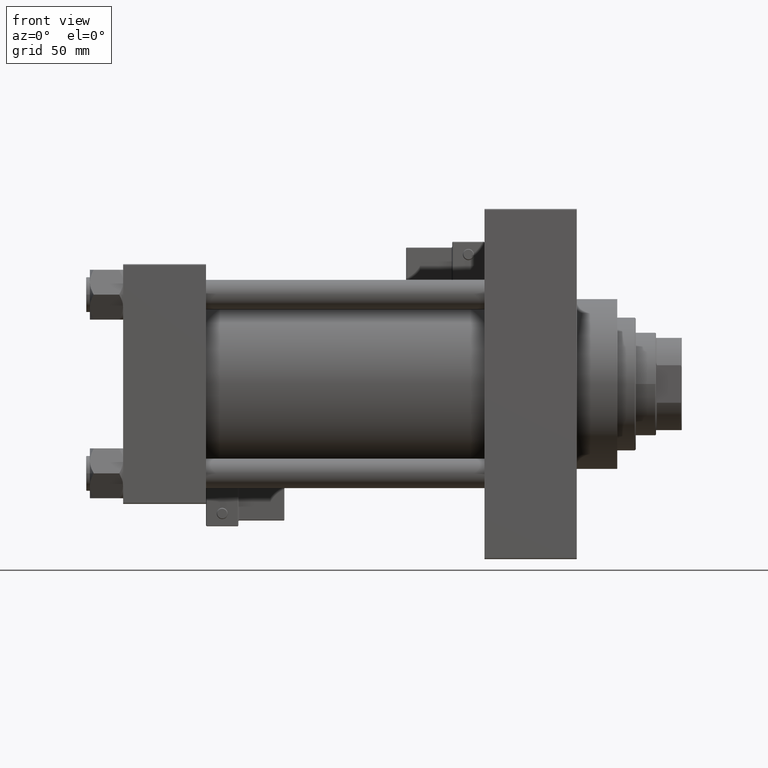
[diagram: clean part render]
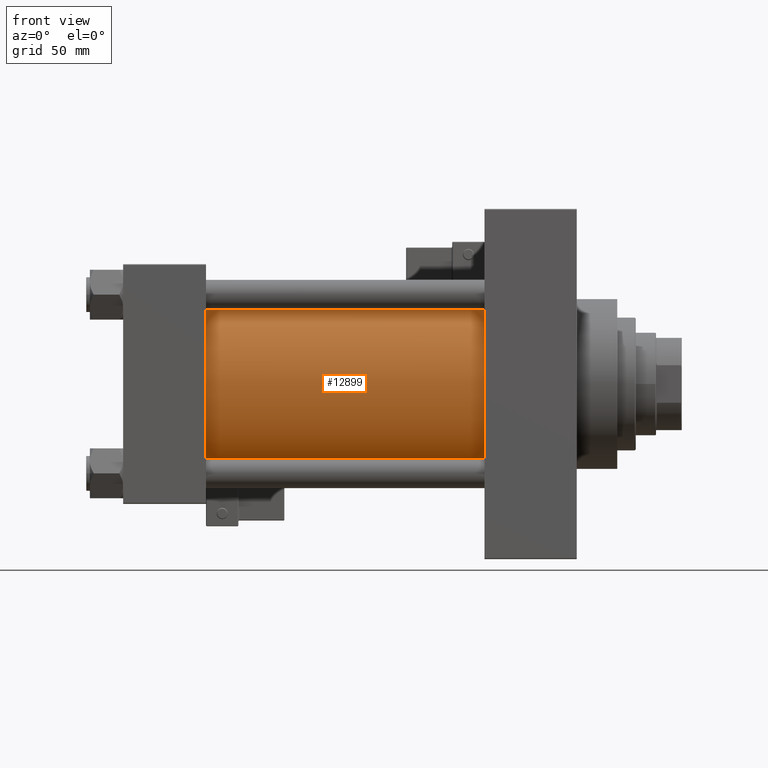
[diagram: same view with one face highlighted and labeled with its STEP entity id]
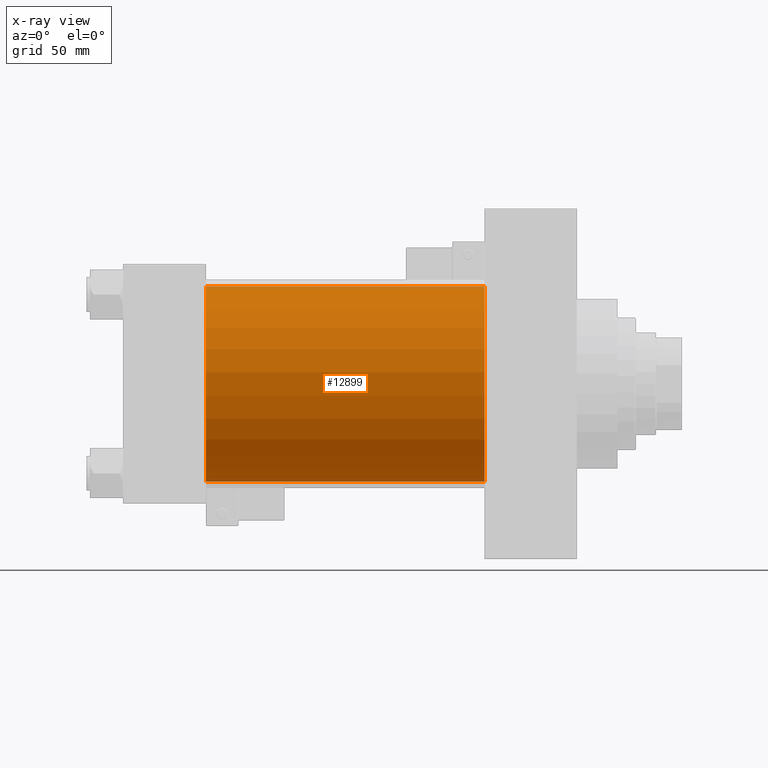
[diagram: x-ray of the same camera — body ghosted, the highlighted face saturated]
A machine part, front view. The second image highlights one B-rep face of the part: STEP entity #12899.
The next image is the same camera in x-ray: the body ghosted, the highlighted face saturated — about 3% of this face is hidden behind the body in this view.
In plain terms, the highlighted cylindrical surface (partial cylindrical patch) has radius 53 mm, axis along (-1, -0, -0).
Its self-contained STEP definition (entity closure, byte-faithful):
#1855 = CARTESIAN_POINT ( 'NONE',  ( 44.99999999999998579, -2.602085213965210642E-15, 53.00000000000000711 ) ) ;
#2686 = VERTEX_POINT ( 'NONE', #34650 ) ;
#2978 = AXIS2_PLACEMENT_3D ( 'NONE', #48890, #29587, #38230 ) ;
#3548 = VERTEX_POINT ( 'NONE', #26554 ) ;
#3636 = EDGE_CURVE ( 'NONE', #3548, #34218, #38960, .T. ) ;
#5045 = DIRECTION ( 'NONE',  ( 0.000000000000000000, 0.000000000000000000, 1.000000000000000000 ) ) ;
#8432 = VECTOR ( 'NONE', #15128, 1000.000000000000000 ) ;
#9467 = EDGE_CURVE ( 'NONE', #3548, #2686, #24838, .T. ) ;
#9477 = ORIENTED_EDGE ( 'NONE', *, *, #9467, .F. ) ;
#10590 = LINE ( 'NONE', #22003, #41941 ) ;
#12899 = ADVANCED_FACE ( 'NONE', ( #17183 ), #20502, .T. ) ;
#13057 = EDGE_CURVE ( 'NONE', #34218, #35908, #35348, .T. ) ;
#15128 = DIRECTION ( 'NONE',  ( -1.000000000000000000, -0.000000000000000000, -0.000000000000000000 ) ) ;
#15153 = DIRECTION ( 'NONE',  ( 1.000000000000000000, -0.000000000000000000, 0.000000000000000000 ) ) ;
#16940 = DIRECTION ( 'NONE',  ( -1.000000000000000000, -0.000000000000000000, -0.000000000000000000 ) ) ;
#17183 = FACE_OUTER_BOUND ( 'NONE', #33427, .T. ) ;
#19445 = DIRECTION ( 'NONE',  ( 0.000000000000000000, 0.000000000000000000, 1.000000000000000000 ) ) ;
#20502 = CYLINDRICAL_SURFACE ( 'NONE', #32119, 53.00000000000000711 ) ;
#20797 = AXIS2_PLACEMENT_3D ( 'NONE', #30853, #15153, #19445 ) ;
#22003 = CARTESIAN_POINT ( 'NONE',  ( 196.0000000000000000, 3.888542821515762466E-15, -53.00000000000000711 ) ) ;
#24838 = CIRCLE ( 'NONE', #2978, 53.00000000000000711 ) ;
#26554 = CARTESIAN_POINT ( 'NONE',  ( 196.0000000000000000, -2.602085213965210642E-15, 53.00000000000000711 ) ) ;
#29587 = DIRECTION ( 'NONE',  ( 1.000000000000000000, 0.000000000000000000, 0.000000000000000000 ) ) ;
#30853 = CARTESIAN_POINT ( 'NONE',  ( 44.99999999999998579, -2.602085213965210642E-15, 0.000000000000000000 ) ) ;
#32119 = AXIS2_PLACEMENT_3D ( 'NONE', #40040, #16940, #5045 ) ;
#32404 = ORIENTED_EDGE ( 'NONE', *, *, #3636, .T. ) ;
#33427 = EDGE_LOOP ( 'NONE', ( #35364, #9477, #32404, #44773 ) ) ;
#34027 = EDGE_CURVE ( 'NONE', #2686, #35908, #10590, .T. ) ;
#34218 = VERTEX_POINT ( 'NONE', #1855 ) ;
#34650 = CARTESIAN_POINT ( 'NONE',  ( 196.0000000000000000, 3.888542821515762466E-15, -53.00000000000000711 ) ) ;
#35348 = CIRCLE ( 'NONE', #20797, 53.00000000000000711 ) ;
#35364 = ORIENTED_EDGE ( 'NONE', *, *, #34027, .F. ) ;
#35908 = VERTEX_POINT ( 'NONE', #36063 ) ;
#36063 = CARTESIAN_POINT ( 'NONE',  ( 44.99999999999998579, 3.888542821515762466E-15, -53.00000000000000711 ) ) ;
#38230 = DIRECTION ( 'NONE',  ( 0.000000000000000000, 0.000000000000000000, -1.000000000000000000 ) ) ;
#38960 = LINE ( 'NONE', #49885, #8432 ) ;
#40040 = CARTESIAN_POINT ( 'NONE',  ( 196.0000000000000000, -2.602085213965210642E-15, 0.000000000000000000 ) ) ;
#41017 = DIRECTION ( 'NONE',  ( -1.000000000000000000, -0.000000000000000000, -0.000000000000000000 ) ) ;
#41941 = VECTOR ( 'NONE', #41017, 1000.000000000000000 ) ;
#44773 = ORIENTED_EDGE ( 'NONE', *, *, #13057, .T. ) ;
#48890 = CARTESIAN_POINT ( 'NONE',  ( 196.0000000000000000, -2.602085213965210642E-15, 0.000000000000000000 ) ) ;
#49885 = CARTESIAN_POINT ( 'NONE',  ( 196.0000000000000000, -2.602085213965210642E-15, 53.00000000000000711 ) ) ;